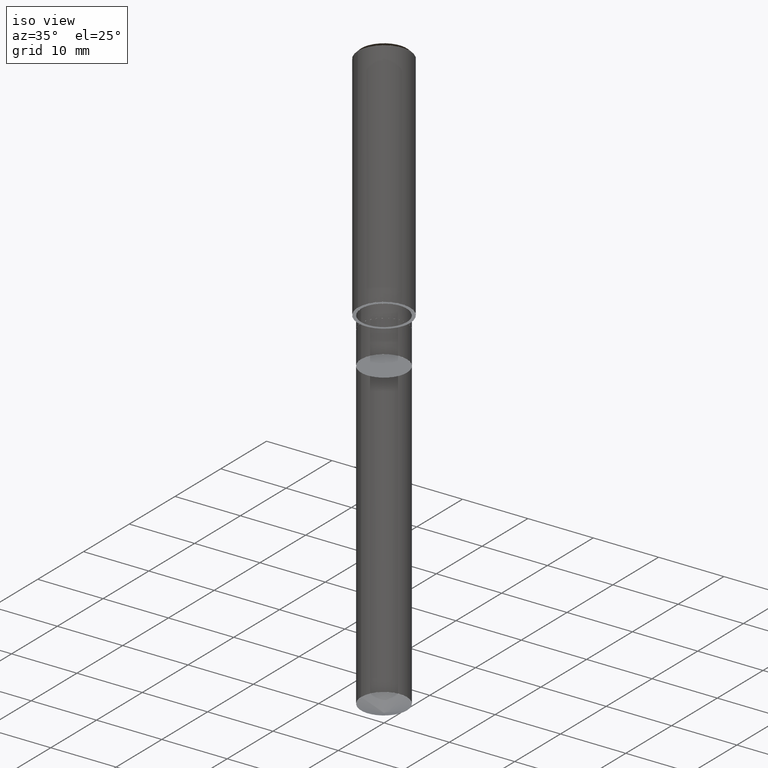
[diagram: clean part render]
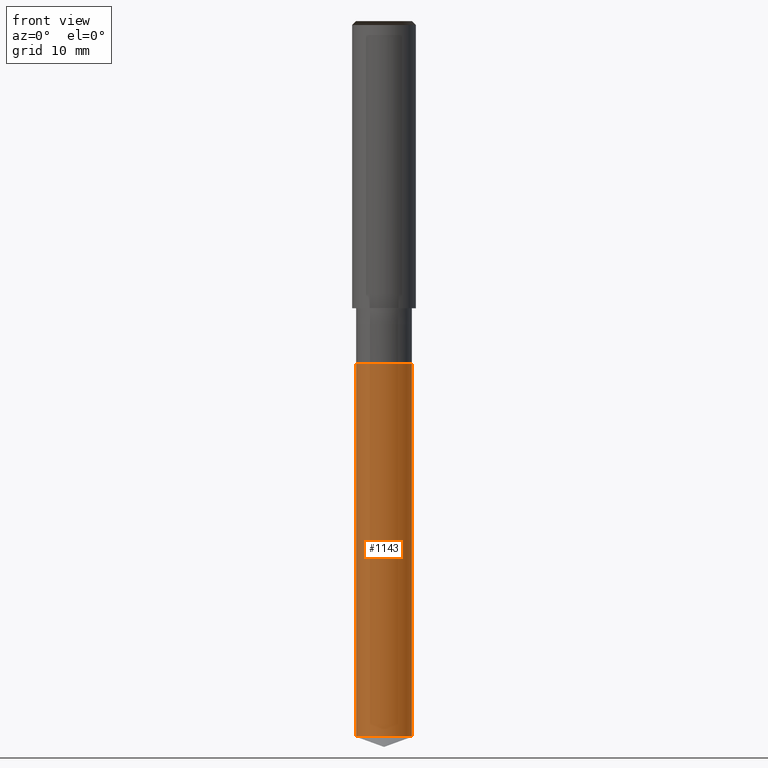
[diagram: tour spotlight — one face highlighted and labeled with its STEP entity id]
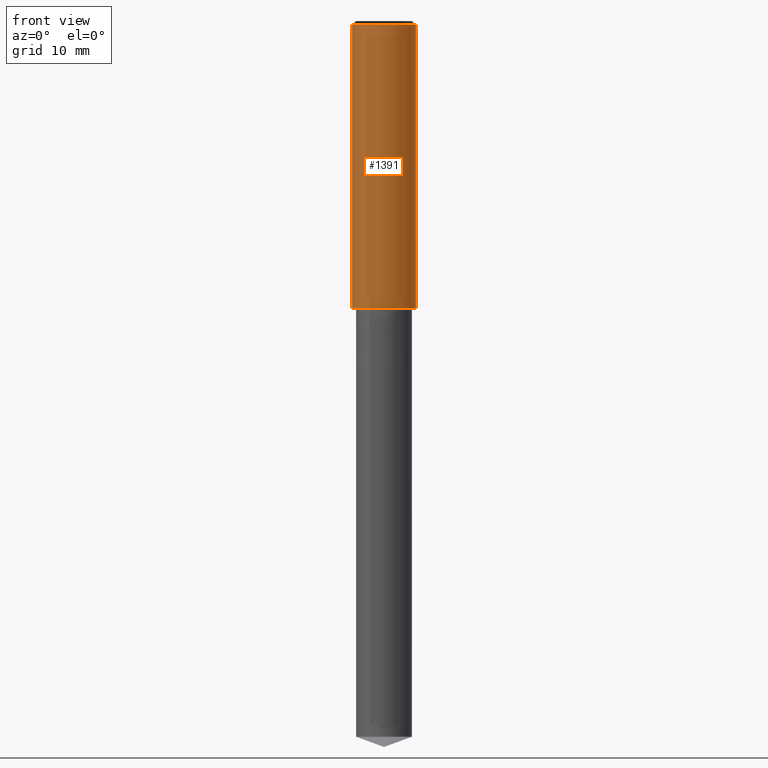
[diagram: tour spotlight — one face highlighted and labeled with its STEP entity id]
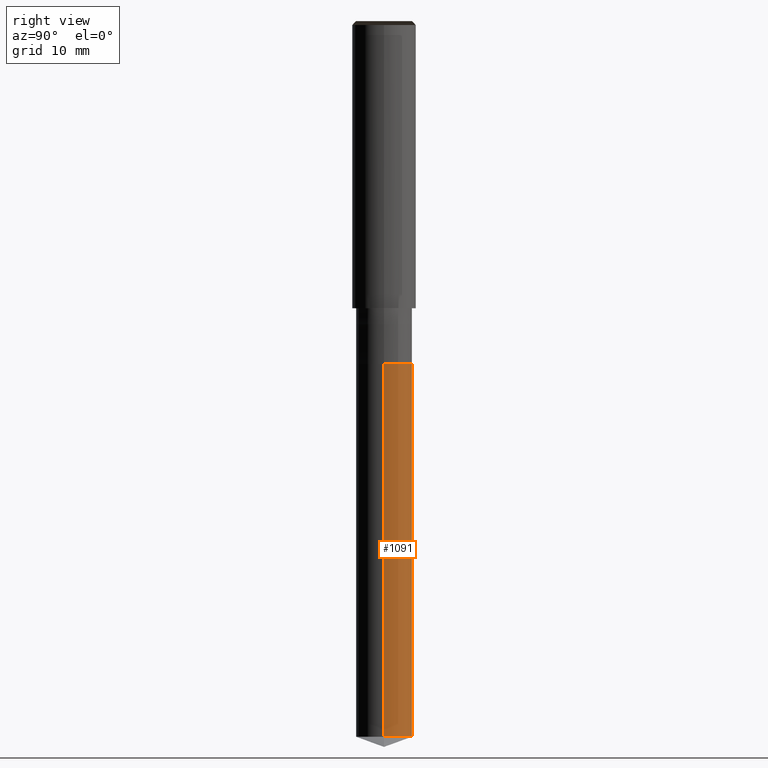
[diagram: tour spotlight — one face highlighted and labeled with its STEP entity id]
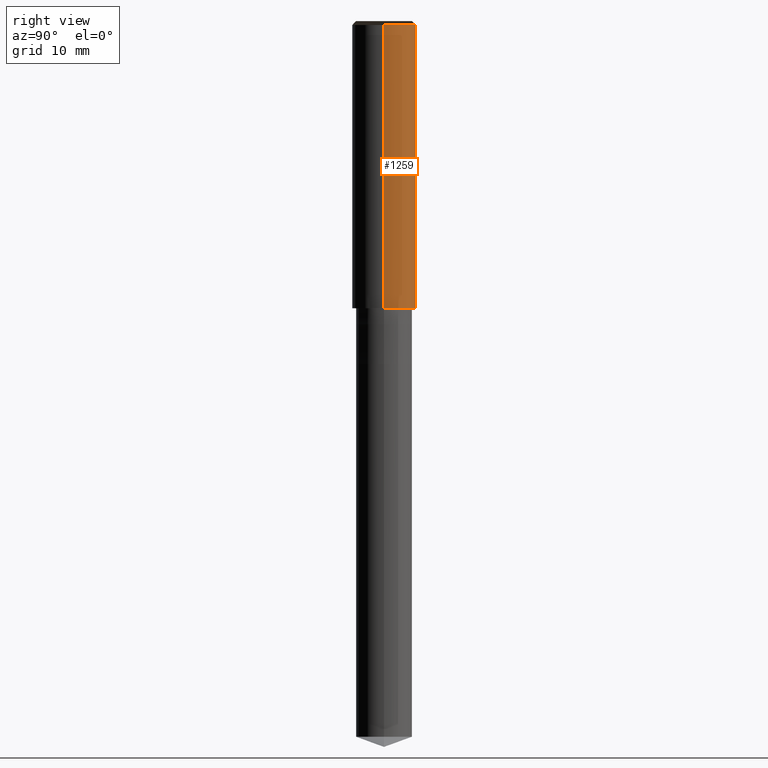
[diagram: tour spotlight — one face highlighted and labeled with its STEP entity id]
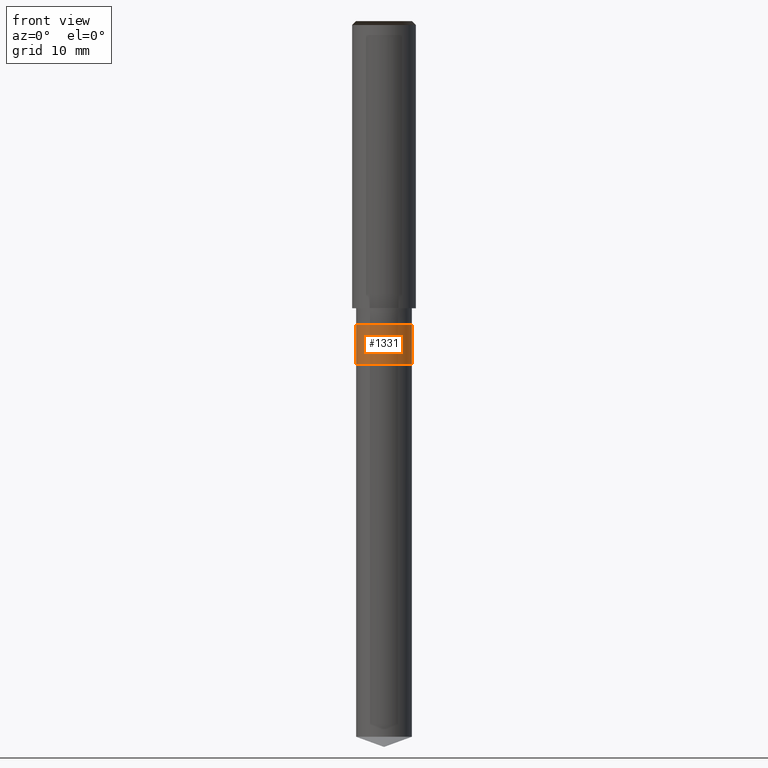
[diagram: tour spotlight — one face highlighted and labeled with its STEP entity id]
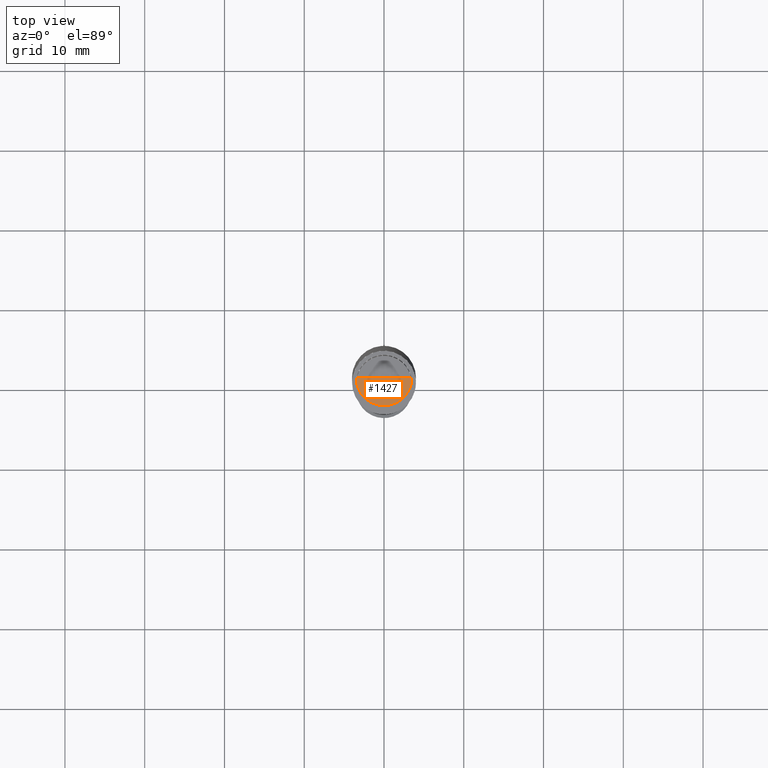
[diagram: tour spotlight — one face highlighted and labeled with its STEP entity id]
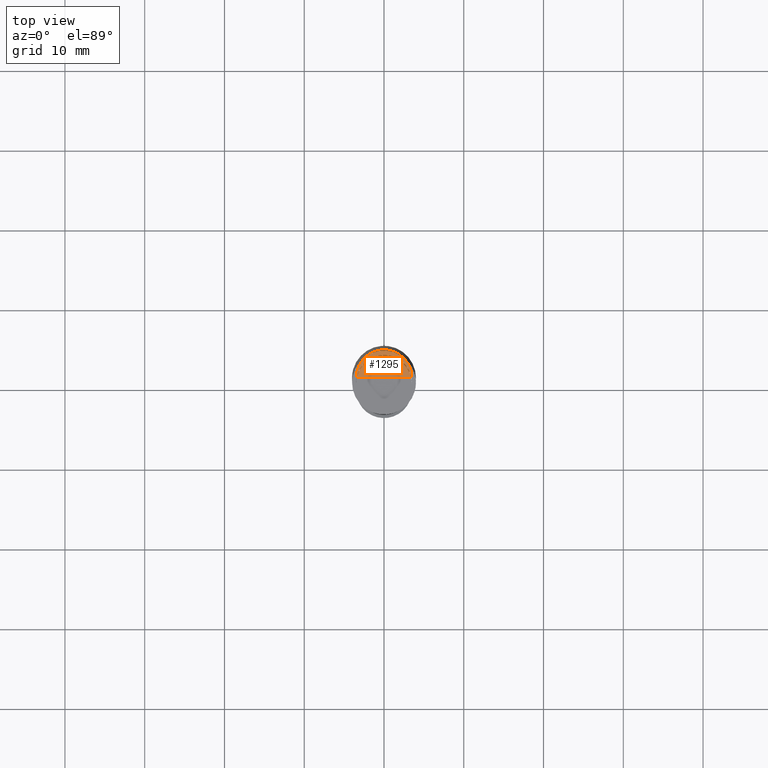
[diagram: tour spotlight — one face highlighted and labeled with its STEP entity id]
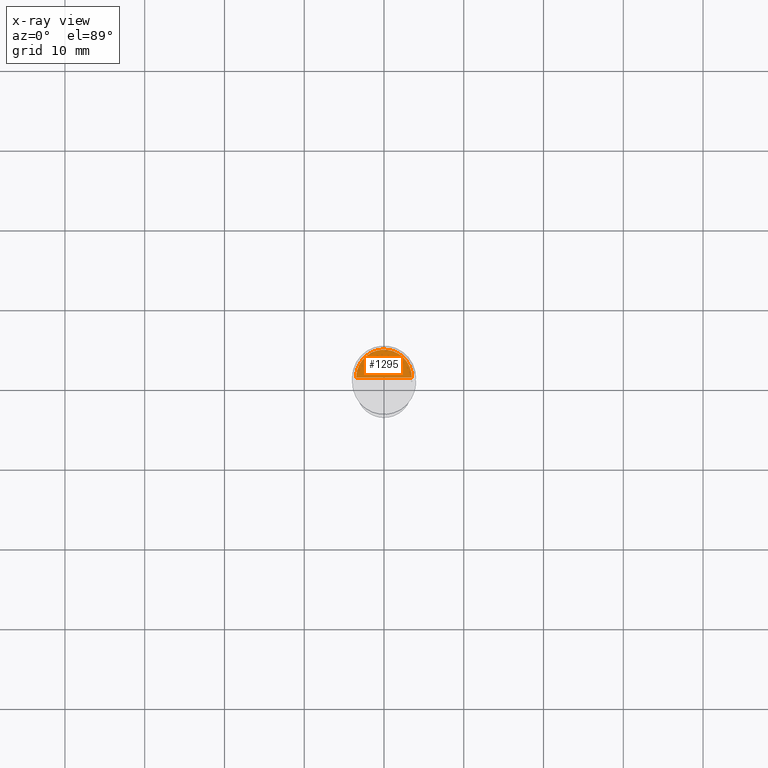
[diagram: x-ray of the same camera — body ghosted, this tour face saturated]
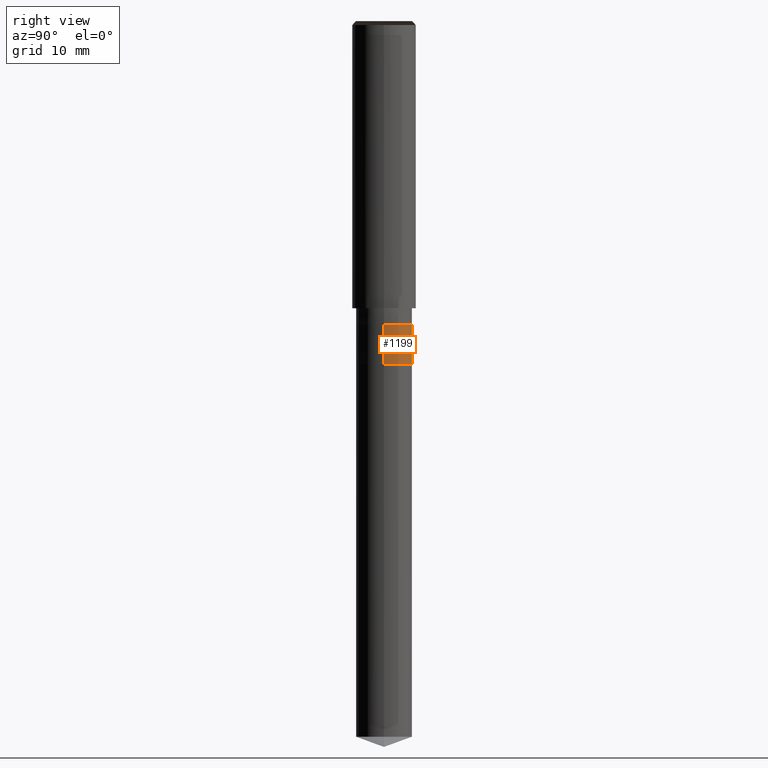
[diagram: tour spotlight — one face highlighted and labeled with its STEP entity id]
A machine part: a face-by-face anatomy tour. The part has 20 B-rep faces; the first image is the clean iso view, then the 8 largest visible faces are spotlighted one at a time (largest first), each with its STEP entity span.

Face 1 — front view, entity #1143. In plain terms, the highlighted face is a freeform B-spline surface patch.
Definition (entity closure, byte-faithful):
#993=CARTESIAN_POINT('',(3.5,0.0,-53.726104180068));
#997=CARTESIAN_POINT('',(-3.5,0.0,-53.726104180068));
#998=CARTESIAN_POINT('',(3.5,0.0,-7.0));
#1002=CARTESIAN_POINT('',(-3.5,0.0,-7.0));
#1004=CARTESIAN_POINT('',(-3.5,-3.5,-53.726104180068));
#1005=CARTESIAN_POINT('',(0.0,-3.5,-53.726104180068));
#1006=CARTESIAN_POINT('',(3.5,-3.5,-53.726104180068));
#1007=CARTESIAN_POINT('',(-3.5,-3.5,-7.0));
#1008=CARTESIAN_POINT('',(0.0,-3.5,-7.0));
#1009=CARTESIAN_POINT('',(3.5,-3.5,-7.0));
#1124=(
BOUNDED_SURFACE()
B_SPLINE_SURFACE(1,2,(
(#997,#1004,#1005,#1006,#993),
(#1002,#1007,#1008,#1009,#998)
), .UNSPECIFIED.,.F.,.F.,.F.)
B_SPLINE_SURFACE_WITH_KNOTS((2,2),(3,2,3),(
0.0,1.0),(
0.0,0.5,1.0), .UNSPECIFIED.)
GEOMETRIC_REPRESENTATION_ITEM()
RATIONAL_B_SPLINE_SURFACE(((1.0,0.707106781187,1.0,0.707106781187,1.0),
(1.0,0.707106781187,1.0,0.707106781187,1.0)
))
REPRESENTATION_ITEM('')
SURFACE()
);
#1125=(
BOUNDED_CURVE()
B_SPLINE_CURVE(2,(#993,#1006,#1005,#1004,#997),.UNSPECIFIED.,.F.,.F.)
B_SPLINE_CURVE_WITH_KNOTS((3,2,3),
(0.0,0.5,1.0),.UNSPECIFIED.)
CURVE()
GEOMETRIC_REPRESENTATION_ITEM()
RATIONAL_B_SPLINE_CURVE((1.0,0.707106781187,1.0,0.707106781187,1.0))
REPRESENTATION_ITEM('')
);
#1126=(
BOUNDED_CURVE()
B_SPLINE_CURVE(1,(#997,#1002),.UNSPECIFIED.,.F.,.F.)
B_SPLINE_CURVE_WITH_KNOTS((2,2),
(0.0,1.0),.UNSPECIFIED.)
CURVE()
GEOMETRIC_REPRESENTATION_ITEM()
RATIONAL_B_SPLINE_CURVE((1.0,1.0))
REPRESENTATION_ITEM('')
);
#1127=(
BOUNDED_CURVE()
B_SPLINE_CURVE(2,(#1002,#1007,#1008,#1009,#998),.UNSPECIFIED.,.F.,.F.)
B_SPLINE_CURVE_WITH_KNOTS((3,2,3),
(0.0,0.5,1.0),.UNSPECIFIED.)
CURVE()
GEOMETRIC_REPRESENTATION_ITEM()
RATIONAL_B_SPLINE_CURVE((1.0,0.707106781187,1.0,0.707106781187,1.0))
REPRESENTATION_ITEM('')
);
#1128=(
BOUNDED_CURVE()
B_SPLINE_CURVE(1,(#998,#993),.UNSPECIFIED.,.F.,.F.)
B_SPLINE_CURVE_WITH_KNOTS((2,2),
(0.0,1.0),.UNSPECIFIED.)
CURVE()
GEOMETRIC_REPRESENTATION_ITEM()
RATIONAL_B_SPLINE_CURVE((1.0,1.0))
REPRESENTATION_ITEM('')
);
#1129=VERTEX_POINT('',#993);
#1130=VERTEX_POINT('',#997);
#1131=VERTEX_POINT('',#998);
#1132=VERTEX_POINT('',#1002);
#1133=EDGE_CURVE('',#1129,#1130,#1125,.T.);
#1134=EDGE_CURVE('',#1130,#1132,#1126,.T.);
#1135=EDGE_CURVE('',#1132,#1131,#1127,.T.);
#1136=EDGE_CURVE('',#1131,#1129,#1128,.T.);
#1137=ORIENTED_EDGE('',*,*,#1133,.T.);
#1138=ORIENTED_EDGE('',*,*,#1134,.T.);
#1139=ORIENTED_EDGE('',*,*,#1135,.T.);
#1140=ORIENTED_EDGE('',*,*,#1136,.T.);
#1141=EDGE_LOOP('',(#1137,#1138,#1139,#1140));
#1142=FACE_OUTER_BOUND('',#1141,.T.);
#1143=ADVANCED_FACE('',(#1142),#1124,.T.);

Face 2 — front view, entity #1391. In plain terms, the highlighted face is a freeform B-spline surface patch.
Definition (entity closure, byte-faithful):
#1020=CARTESIAN_POINT('',(4.0,0.0,0.0));
#1024=CARTESIAN_POINT('',(-4.0,0.0,0.0));
#1025=CARTESIAN_POINT('',(4.0,0.0,35.5));
#1029=CARTESIAN_POINT('',(-4.0,0.0,35.5));
#1042=CARTESIAN_POINT('',(-4.0,-4.0,0.0));
#1043=CARTESIAN_POINT('',(0.0,-4.0,0.0));
#1044=CARTESIAN_POINT('',(4.0,-4.0,0.0));
#1045=CARTESIAN_POINT('',(-4.0,-4.0,35.5));
#1046=CARTESIAN_POINT('',(0.0,-4.0,35.5));
#1047=CARTESIAN_POINT('',(4.0,-4.0,35.5));
#1372=(
BOUNDED_SURFACE()
B_SPLINE_SURFACE(1,2,(
(#1024,#1042,#1043,#1044,#1020),
(#1029,#1045,#1046,#1047,#1025)
), .UNSPECIFIED.,.F.,.F.,.F.)
B_SPLINE_SURFACE_WITH_KNOTS((2,2),(3,2,3),(
0.0,1.0),(
0.0,0.5,1.0), .UNSPECIFIED.)
GEOMETRIC_REPRESENTATION_ITEM()
RATIONAL_B_SPLINE_SURFACE(((1.0,0.707106781187,1.0,0.707106781187,1.0),
(1.0,0.707106781187,1.0,0.707106781187,1.0)
))
REPRESENTATION_ITEM('')
SURFACE()
);
#1373=(
BOUNDED_CURVE()
B_SPLINE_CURVE(2,(#1020,#1044,#1043,#1042,#1024),.UNSPECIFIED.,.F.,.F.)
B_SPLINE_CURVE_WITH_KNOTS((3,2,3),
(0.0,0.5,1.0),.UNSPECIFIED.)
CURVE()
GEOMETRIC_REPRESENTATION_ITEM()
RATIONAL_B_SPLINE_CURVE((1.0,0.707106781187,1.0,0.707106781187,1.0))
REPRESENTATION_ITEM('')
);
#1374=(
BOUNDED_CURVE()
B_SPLINE_CURVE(1,(#1024,#1029),.UNSPECIFIED.,.F.,.F.)
B_SPLINE_CURVE_WITH_KNOTS((2,2),
(0.0,1.0),.UNSPECIFIED.)
CURVE()
GEOMETRIC_REPRESENTATION_ITEM()
RATIONAL_B_SPLINE_CURVE((1.0,1.0))
REPRESENTATION_ITEM('')
);
#1375=(
BOUNDED_CURVE()
B_SPLINE_CURVE(2,(#1029,#1045,#1046,#1047,#1025),.UNSPECIFIED.,.F.,.F.)
B_SPLINE_CURVE_WITH_KNOTS((3,2,3),
(0.0,0.5,1.0),.UNSPECIFIED.)
CURVE()
GEOMETRIC_REPRESENTATION_ITEM()
RATIONAL_B_SPLINE_CURVE((1.0,0.707106781187,1.0,0.707106781187,1.0))
REPRESENTATION_ITEM('')
);
#1376=(
BOUNDED_CURVE()
B_SPLINE_CURVE(1,(#1025,#1020),.UNSPECIFIED.,.F.,.F.)
B_SPLINE_CURVE_WITH_KNOTS((2,2),
(0.0,1.0),.UNSPECIFIED.)
CURVE()
GEOMETRIC_REPRESENTATION_ITEM()
RATIONAL_B_SPLINE_CURVE((1.0,1.0))
REPRESENTATION_ITEM('')
);
#1377=VERTEX_POINT('',#1020);
#1378=VERTEX_POINT('',#1024);
#1379=VERTEX_POINT('',#1025);
#1380=VERTEX_POINT('',#1029);
#1381=EDGE_CURVE('',#1377,#1378,#1373,.T.);
#1382=EDGE_CURVE('',#1378,#1380,#1374,.T.);
#1383=EDGE_CURVE('',#1380,#1379,#1375,.T.);
#1384=EDGE_CURVE('',#1379,#1377,#1376,.T.);
#1385=ORIENTED_EDGE('',*,*,#1381,.T.);
#1386=ORIENTED_EDGE('',*,*,#1382,.T.);
#1387=ORIENTED_EDGE('',*,*,#1383,.T.);
#1388=ORIENTED_EDGE('',*,*,#1384,.T.);
#1389=EDGE_LOOP('',(#1385,#1386,#1387,#1388));
#1390=FACE_OUTER_BOUND('',#1389,.T.);
#1391=ADVANCED_FACE('',(#1390),#1372,.T.);

Face 3 — right view, entity #1091. In plain terms, the highlighted face is a freeform B-spline surface patch.
Definition (entity closure, byte-faithful):
#993=CARTESIAN_POINT('',(3.5,0.0,-53.726104180068));
#994=CARTESIAN_POINT('',(3.5,3.5,-53.726104180068));
#995=CARTESIAN_POINT('',(0.0,3.5,-53.726104180068));
#996=CARTESIAN_POINT('',(-3.5,3.5,-53.726104180068));
#997=CARTESIAN_POINT('',(-3.5,0.0,-53.726104180068));
#998=CARTESIAN_POINT('',(3.5,0.0,-7.0));
#999=CARTESIAN_POINT('',(3.5,3.5,-7.0));
#1000=CARTESIAN_POINT('',(0.0,3.5,-7.0));
#1001=CARTESIAN_POINT('',(-3.5,3.5,-7.0));
#1002=CARTESIAN_POINT('',(-3.5,0.0,-7.0));
#1072=(
BOUNDED_SURFACE()
B_SPLINE_SURFACE(1,2,(
(#993,#994,#995,#996,#997),
(#998,#999,#1000,#1001,#1002)
), .UNSPECIFIED.,.F.,.F.,.F.)
B_SPLINE_SURFACE_WITH_KNOTS((2,2),(3,2,3),(
0.0,1.0),(
0.0,0.5,1.0), .UNSPECIFIED.)
GEOMETRIC_REPRESENTATION_ITEM()
RATIONAL_B_SPLINE_SURFACE(((1.0,0.707106781187,1.0,0.707106781187,1.0),
(1.0,0.707106781187,1.0,0.707106781187,1.0)
))
REPRESENTATION_ITEM('')
SURFACE()
);
#1073=(
BOUNDED_CURVE()
B_SPLINE_CURVE(2,(#997,#996,#995,#994,#993),.UNSPECIFIED.,.F.,.F.)
B_SPLINE_CURVE_WITH_KNOTS((3,2,3),
(0.0,0.5,1.0),.UNSPECIFIED.)
CURVE()
GEOMETRIC_REPRESENTATION_ITEM()
RATIONAL_B_SPLINE_CURVE((1.0,0.707106781187,1.0,0.707106781187,1.0))
REPRESENTATION_ITEM('')
);
#1074=(
BOUNDED_CURVE()
B_SPLINE_CURVE(1,(#993,#998),.UNSPECIFIED.,.F.,.F.)
B_SPLINE_CURVE_WITH_KNOTS((2,2),
(0.0,1.0),.UNSPECIFIED.)
CURVE()
GEOMETRIC_REPRESENTATION_ITEM()
RATIONAL_B_SPLINE_CURVE((1.0,1.0))
REPRESENTATION_ITEM('')
);
#1075=(
BOUNDED_CURVE()
B_SPLINE_CURVE(2,(#998,#999,#1000,#1001,#1002),.UNSPECIFIED.,.F.,.F.)
B_SPLINE_CURVE_WITH_KNOTS((3,2,3),
(0.0,0.5,1.0),.UNSPECIFIED.)
CURVE()
GEOMETRIC_REPRESENTATION_ITEM()
RATIONAL_B_SPLINE_CURVE((1.0,0.707106781187,1.0,0.707106781187,1.0))
REPRESENTATION_ITEM('')
);
#1076=(
BOUNDED_CURVE()
B_SPLINE_CURVE(1,(#1002,#997),.UNSPECIFIED.,.F.,.F.)
B_SPLINE_CURVE_WITH_KNOTS((2,2),
(0.0,1.0),.UNSPECIFIED.)
CURVE()
GEOMETRIC_REPRESENTATION_ITEM()
RATIONAL_B_SPLINE_CURVE((1.0,1.0))
REPRESENTATION_ITEM('')
);
#1077=VERTEX_POINT('',#993);
#1078=VERTEX_POINT('',#997);
#1079=VERTEX_POINT('',#998);
#1080=VERTEX_POINT('',#1002);
#1081=EDGE_CURVE('',#1078,#1077,#1073,.T.);
#1082=EDGE_CURVE('',#1077,#1079,#1074,.T.);
#1083=EDGE_CURVE('',#1079,#1080,#1075,.T.);
#1084=EDGE_CURVE('',#1080,#1078,#1076,.T.);
#1085=ORIENTED_EDGE('',*,*,#1081,.T.);
#1086=ORIENTED_EDGE('',*,*,#1082,.T.);
#1087=ORIENTED_EDGE('',*,*,#1083,.T.);
#1088=ORIENTED_EDGE('',*,*,#1084,.T.);
#1089=EDGE_LOOP('',(#1085,#1086,#1087,#1088));
#1090=FACE_OUTER_BOUND('',#1089,.T.);
#1091=ADVANCED_FACE('',(#1090),#1072,.T.);

Face 4 — right view, entity #1259. In plain terms, the highlighted face is a freeform B-spline surface patch.
Definition (entity closure, byte-faithful):
#1020=CARTESIAN_POINT('',(4.0,0.0,0.0));
#1021=CARTESIAN_POINT('',(4.0,4.0,0.0));
#1022=CARTESIAN_POINT('',(0.0,4.0,0.0));
#1023=CARTESIAN_POINT('',(-4.0,4.0,0.0));
#1024=CARTESIAN_POINT('',(-4.0,0.0,0.0));
#1025=CARTESIAN_POINT('',(4.0,0.0,35.5));
#1026=CARTESIAN_POINT('',(4.0,4.0,35.5));
#1027=CARTESIAN_POINT('',(0.0,4.0,35.5));
#1028=CARTESIAN_POINT('',(-4.0,4.0,35.5));
#1029=CARTESIAN_POINT('',(-4.0,0.0,35.5));
#1240=(
BOUNDED_SURFACE()
B_SPLINE_SURFACE(1,2,(
(#1020,#1021,#1022,#1023,#1024),
(#1025,#1026,#1027,#1028,#1029)
), .UNSPECIFIED.,.F.,.F.,.F.)
B_SPLINE_SURFACE_WITH_KNOTS((2,2),(3,2,3),(
0.0,1.0),(
0.0,0.5,1.0), .UNSPECIFIED.)
GEOMETRIC_REPRESENTATION_ITEM()
RATIONAL_B_SPLINE_SURFACE(((1.0,0.707106781187,1.0,0.707106781187,1.0),
(1.0,0.707106781187,1.0,0.707106781187,1.0)
))
REPRESENTATION_ITEM('')
SURFACE()
);
#1241=(
BOUNDED_CURVE()
B_SPLINE_CURVE(2,(#1024,#1023,#1022,#1021,#1020),.UNSPECIFIED.,.F.,.F.)
B_SPLINE_CURVE_WITH_KNOTS((3,2,3),
(0.0,0.5,1.0),.UNSPECIFIED.)
CURVE()
GEOMETRIC_REPRESENTATION_ITEM()
RATIONAL_B_SPLINE_CURVE((1.0,0.707106781187,1.0,0.707106781187,1.0))
REPRESENTATION_ITEM('')
);
#1242=(
BOUNDED_CURVE()
B_SPLINE_CURVE(1,(#1020,#1025),.UNSPECIFIED.,.F.,.F.)
B_SPLINE_CURVE_WITH_KNOTS((2,2),
(0.0,1.0),.UNSPECIFIED.)
CURVE()
GEOMETRIC_REPRESENTATION_ITEM()
RATIONAL_B_SPLINE_CURVE((1.0,1.0))
REPRESENTATION_ITEM('')
);
#1243=(
BOUNDED_CURVE()
B_SPLINE_CURVE(2,(#1025,#1026,#1027,#1028,#1029),.UNSPECIFIED.,.F.,.F.)
B_SPLINE_CURVE_WITH_KNOTS((3,2,3),
(0.0,0.5,1.0),.UNSPECIFIED.)
CURVE()
GEOMETRIC_REPRESENTATION_ITEM()
RATIONAL_B_SPLINE_CURVE((1.0,0.707106781187,1.0,0.707106781187,1.0))
REPRESENTATION_ITEM('')
);
#1244=(
BOUNDED_CURVE()
B_SPLINE_CURVE(1,(#1029,#1024),.UNSPECIFIED.,.F.,.F.)
B_SPLINE_CURVE_WITH_KNOTS((2,2),
(0.0,1.0),.UNSPECIFIED.)
CURVE()
GEOMETRIC_REPRESENTATION_ITEM()
RATIONAL_B_SPLINE_CURVE((1.0,1.0))
REPRESENTATION_ITEM('')
);
#1245=VERTEX_POINT('',#1020);
#1246=VERTEX_POINT('',#1024);
#1247=VERTEX_POINT('',#1025);
#1248=VERTEX_POINT('',#1029);
#1249=EDGE_CURVE('',#1246,#1245,#1241,.T.);
#1250=EDGE_CURVE('',#1245,#1247,#1242,.T.);
#1251=EDGE_CURVE('',#1247,#1248,#1243,.T.);
#1252=EDGE_CURVE('',#1248,#1246,#1244,.T.);
#1253=ORIENTED_EDGE('',*,*,#1249,.T.);
#1254=ORIENTED_EDGE('',*,*,#1250,.T.);
#1255=ORIENTED_EDGE('',*,*,#1251,.T.);
#1256=ORIENTED_EDGE('',*,*,#1252,.T.);
#1257=EDGE_LOOP('',(#1253,#1254,#1255,#1256));
#1258=FACE_OUTER_BOUND('',#1257,.T.);
#1259=ADVANCED_FACE('',(#1258),#1240,.T.);

Face 5 — front view, entity #1331. In plain terms, the highlighted face is a freeform B-spline surface patch.
Definition (entity closure, byte-faithful):
#998=CARTESIAN_POINT('',(3.5,0.0,-7.0));
#1002=CARTESIAN_POINT('',(-3.5,0.0,-7.0));
#1007=CARTESIAN_POINT('',(-3.5,-3.5,-7.0));
#1008=CARTESIAN_POINT('',(0.0,-3.5,-7.0));
#1009=CARTESIAN_POINT('',(3.5,-3.5,-7.0));
#1010=CARTESIAN_POINT('',(3.5,0.0,-2.0));
#1014=CARTESIAN_POINT('',(-3.5,0.0,-2.0));
#1036=CARTESIAN_POINT('',(-3.5,-3.5,-2.0));
#1037=CARTESIAN_POINT('',(0.0,-3.5,-2.0));
#1038=CARTESIAN_POINT('',(3.5,-3.5,-2.0));
#1312=(
BOUNDED_SURFACE()
B_SPLINE_SURFACE(1,2,(
(#1002,#1007,#1008,#1009,#998),
(#1014,#1036,#1037,#1038,#1010)
), .UNSPECIFIED.,.F.,.F.,.F.)
B_SPLINE_SURFACE_WITH_KNOTS((2,2),(3,2,3),(
0.0,1.0),(
0.0,0.5,1.0), .UNSPECIFIED.)
GEOMETRIC_REPRESENTATION_ITEM()
RATIONAL_B_SPLINE_SURFACE(((1.0,0.707106781187,1.0,0.707106781187,1.0),
(1.0,0.707106781187,1.0,0.707106781187,1.0)
))
REPRESENTATION_ITEM('')
SURFACE()
);
#1313=(
BOUNDED_CURVE()
B_SPLINE_CURVE(2,(#998,#1009,#1008,#1007,#1002),.UNSPECIFIED.,.F.,.F.)
B_SPLINE_CURVE_WITH_KNOTS((3,2,3),
(0.0,0.5,1.0),.UNSPECIFIED.)
CURVE()
GEOMETRIC_REPRESENTATION_ITEM()
RATIONAL_B_SPLINE_CURVE((1.0,0.707106781187,1.0,0.707106781187,1.0))
REPRESENTATION_ITEM('')
);
#1314=(
BOUNDED_CURVE()
B_SPLINE_CURVE(1,(#1002,#1014),.UNSPECIFIED.,.F.,.F.)
B_SPLINE_CURVE_WITH_KNOTS((2,2),
(0.0,1.0),.UNSPECIFIED.)
CURVE()
GEOMETRIC_REPRESENTATION_ITEM()
RATIONAL_B_SPLINE_CURVE((1.0,1.0))
REPRESENTATION_ITEM('')
);
#1315=(
BOUNDED_CURVE()
B_SPLINE_CURVE(2,(#1014,#1036,#1037,#1038,#1010),.UNSPECIFIED.,.F.,.F.)
B_SPLINE_CURVE_WITH_KNOTS((3,2,3),
(0.0,0.5,1.0),.UNSPECIFIED.)
CURVE()
GEOMETRIC_REPRESENTATION_ITEM()
RATIONAL_B_SPLINE_CURVE((1.0,0.707106781187,1.0,0.707106781187,1.0))
REPRESENTATION_ITEM('')
);
#1316=(
BOUNDED_CURVE()
B_SPLINE_CURVE(1,(#1010,#998),.UNSPECIFIED.,.F.,.F.)
B_SPLINE_CURVE_WITH_KNOTS((2,2),
(0.0,1.0),.UNSPECIFIED.)
CURVE()
GEOMETRIC_REPRESENTATION_ITEM()
RATIONAL_B_SPLINE_CURVE((1.0,1.0))
REPRESENTATION_ITEM('')
);
#1317=VERTEX_POINT('',#998);
#1318=VERTEX_POINT('',#1002);
#1319=VERTEX_POINT('',#1010);
#1320=VERTEX_POINT('',#1014);
#1321=EDGE_CURVE('',#1317,#1318,#1313,.T.);
#1322=EDGE_CURVE('',#1318,#1320,#1314,.T.);
#1323=EDGE_CURVE('',#1320,#1319,#1315,.T.);
#1324=EDGE_CURVE('',#1319,#1317,#1316,.T.);
#1325=ORIENTED_EDGE('',*,*,#1321,.T.);
#1326=ORIENTED_EDGE('',*,*,#1322,.T.);
#1327=ORIENTED_EDGE('',*,*,#1323,.T.);
#1328=ORIENTED_EDGE('',*,*,#1324,.T.);
#1329=EDGE_LOOP('',(#1325,#1326,#1327,#1328));
#1330=FACE_OUTER_BOUND('',#1329,.T.);
#1331=ADVANCED_FACE('',(#1330),#1312,.T.);

Face 6 — top view, entity #1427. In plain terms, the highlighted face is a freeform B-spline surface patch.
Definition (entity closure, byte-faithful):
#1030=CARTESIAN_POINT('',(3.5,0.0,36.0));
#1034=CARTESIAN_POINT('',(-3.5,0.0,36.0));
#1035=CARTESIAN_POINT('',(0.0,0.0,36.0));
#1048=CARTESIAN_POINT('',(-3.5,-3.5,36.0));
#1049=CARTESIAN_POINT('',(0.0,-3.5,36.0));
#1050=CARTESIAN_POINT('',(3.5,-3.5,36.0));
#1412=(
BOUNDED_SURFACE()
B_SPLINE_SURFACE(1,2,(
(#1034,#1048,#1049,#1050,#1030),
(#1035,#1035,#1035,#1035,#1035)
), .UNSPECIFIED.,.F.,.F.,.F.)
B_SPLINE_SURFACE_WITH_KNOTS((2,2),(3,2,3),(
0.0,1.0),(
0.0,0.5,1.0), .UNSPECIFIED.)
GEOMETRIC_REPRESENTATION_ITEM()
RATIONAL_B_SPLINE_SURFACE(((1.0,0.707106781187,1.0,0.707106781187,1.0),
(1.0,0.707106781187,1.0,0.707106781187,1.0)
))
REPRESENTATION_ITEM('')
SURFACE()
);
#1413=(
BOUNDED_CURVE()
B_SPLINE_CURVE(2,(#1030,#1050,#1049,#1048,#1034),.UNSPECIFIED.,.F.,.F.)
B_SPLINE_CURVE_WITH_KNOTS((3,2,3),
(0.0,0.5,1.0),.UNSPECIFIED.)
CURVE()
GEOMETRIC_REPRESENTATION_ITEM()
RATIONAL_B_SPLINE_CURVE((1.0,0.707106781187,1.0,0.707106781187,1.0))
REPRESENTATION_ITEM('')
);
#1414=(
BOUNDED_CURVE()
B_SPLINE_CURVE(1,(#1034,#1035),.UNSPECIFIED.,.F.,.F.)
B_SPLINE_CURVE_WITH_KNOTS((2,2),
(0.0,1.0),.UNSPECIFIED.)
CURVE()
GEOMETRIC_REPRESENTATION_ITEM()
RATIONAL_B_SPLINE_CURVE((1.0,1.0))
REPRESENTATION_ITEM('')
);
#1415=(
BOUNDED_CURVE()
B_SPLINE_CURVE(1,(#1035,#1030),.UNSPECIFIED.,.F.,.F.)
B_SPLINE_CURVE_WITH_KNOTS((2,2),
(0.0,1.0),.UNSPECIFIED.)
CURVE()
GEOMETRIC_REPRESENTATION_ITEM()
RATIONAL_B_SPLINE_CURVE((1.0,1.0))
REPRESENTATION_ITEM('')
);
#1416=VERTEX_POINT('',#1030);
#1417=VERTEX_POINT('',#1034);
#1418=VERTEX_POINT('',#1035);
#1419=EDGE_CURVE('',#1416,#1417,#1413,.T.);
#1420=EDGE_CURVE('',#1417,#1418,#1414,.T.);
#1421=EDGE_CURVE('',#1418,#1416,#1415,.T.);
#1422=ORIENTED_EDGE('',*,*,#1419,.T.);
#1423=ORIENTED_EDGE('',*,*,#1420,.T.);
#1424=ORIENTED_EDGE('',*,*,#1421,.T.);
#1425=EDGE_LOOP('',(#1422,#1423,#1424));
#1426=FACE_OUTER_BOUND('',#1425,.T.);
#1427=ADVANCED_FACE('',(#1426),#1412,.T.);

Face 7 — top view, entity #1295. An x-ray twin of the same camera follows (body ghosted, this face saturated) — the face is partly hidden behind the body. In plain terms, the highlighted face is a freeform B-spline surface patch.
Definition (entity closure, byte-faithful):
#1030=CARTESIAN_POINT('',(3.5,0.0,36.0));
#1031=CARTESIAN_POINT('',(3.5,3.5,36.0));
#1032=CARTESIAN_POINT('',(0.0,3.5,36.0));
#1033=CARTESIAN_POINT('',(-3.5,3.5,36.0));
#1034=CARTESIAN_POINT('',(-3.5,0.0,36.0));
#1035=CARTESIAN_POINT('',(0.0,0.0,36.0));
#1280=(
BOUNDED_SURFACE()
B_SPLINE_SURFACE(1,2,(
(#1030,#1031,#1032,#1033,#1034),
(#1035,#1035,#1035,#1035,#1035)
), .UNSPECIFIED.,.F.,.F.,.F.)
B_SPLINE_SURFACE_WITH_KNOTS((2,2),(3,2,3),(
0.0,1.0),(
0.0,0.5,1.0), .UNSPECIFIED.)
GEOMETRIC_REPRESENTATION_ITEM()
RATIONAL_B_SPLINE_SURFACE(((1.0,0.707106781187,1.0,0.707106781187,1.0),
(1.0,0.707106781187,1.0,0.707106781187,1.0)
))
REPRESENTATION_ITEM('')
SURFACE()
);
#1281=(
BOUNDED_CURVE()
B_SPLINE_CURVE(2,(#1034,#1033,#1032,#1031,#1030),.UNSPECIFIED.,.F.,.F.)
B_SPLINE_CURVE_WITH_KNOTS((3,2,3),
(0.0,0.5,1.0),.UNSPECIFIED.)
CURVE()
GEOMETRIC_REPRESENTATION_ITEM()
RATIONAL_B_SPLINE_CURVE((1.0,0.707106781187,1.0,0.707106781187,1.0))
REPRESENTATION_ITEM('')
);
#1282=(
BOUNDED_CURVE()
B_SPLINE_CURVE(1,(#1030,#1035),.UNSPECIFIED.,.F.,.F.)
B_SPLINE_CURVE_WITH_KNOTS((2,2),
(0.0,1.0),.UNSPECIFIED.)
CURVE()
GEOMETRIC_REPRESENTATION_ITEM()
RATIONAL_B_SPLINE_CURVE((1.0,1.0))
REPRESENTATION_ITEM('')
);
#1283=(
BOUNDED_CURVE()
B_SPLINE_CURVE(1,(#1035,#1034),.UNSPECIFIED.,.F.,.F.)
B_SPLINE_CURVE_WITH_KNOTS((2,2),
(0.0,1.0),.UNSPECIFIED.)
CURVE()
GEOMETRIC_REPRESENTATION_ITEM()
RATIONAL_B_SPLINE_CURVE((1.0,1.0))
REPRESENTATION_ITEM('')
);
#1284=VERTEX_POINT('',#1030);
#1285=VERTEX_POINT('',#1034);
#1286=VERTEX_POINT('',#1035);
#1287=EDGE_CURVE('',#1285,#1284,#1281,.T.);
#1288=EDGE_CURVE('',#1284,#1286,#1282,.T.);
#1289=EDGE_CURVE('',#1286,#1285,#1283,.T.);
#1290=ORIENTED_EDGE('',*,*,#1287,.T.);
#1291=ORIENTED_EDGE('',*,*,#1288,.T.);
#1292=ORIENTED_EDGE('',*,*,#1289,.T.);
#1293=EDGE_LOOP('',(#1290,#1291,#1292));
#1294=FACE_OUTER_BOUND('',#1293,.T.);
#1295=ADVANCED_FACE('',(#1294),#1280,.T.);

Face 8 — right view, entity #1199. In plain terms, the highlighted face is a freeform B-spline surface patch.
Definition (entity closure, byte-faithful):
#998=CARTESIAN_POINT('',(3.5,0.0,-7.0));
#999=CARTESIAN_POINT('',(3.5,3.5,-7.0));
#1000=CARTESIAN_POINT('',(0.0,3.5,-7.0));
#1001=CARTESIAN_POINT('',(-3.5,3.5,-7.0));
#1002=CARTESIAN_POINT('',(-3.5,0.0,-7.0));
#1010=CARTESIAN_POINT('',(3.5,0.0,-2.0));
#1011=CARTESIAN_POINT('',(3.5,3.5,-2.0));
#1012=CARTESIAN_POINT('',(0.0,3.5,-2.0));
#1013=CARTESIAN_POINT('',(-3.5,3.5,-2.0));
#1014=CARTESIAN_POINT('',(-3.5,0.0,-2.0));
#1180=(
BOUNDED_SURFACE()
B_SPLINE_SURFACE(1,2,(
(#998,#999,#1000,#1001,#1002),
(#1010,#1011,#1012,#1013,#1014)
), .UNSPECIFIED.,.F.,.F.,.F.)
B_SPLINE_SURFACE_WITH_KNOTS((2,2),(3,2,3),(
0.0,1.0),(
0.0,0.5,1.0), .UNSPECIFIED.)
GEOMETRIC_REPRESENTATION_ITEM()
RATIONAL_B_SPLINE_SURFACE(((1.0,0.707106781187,1.0,0.707106781187,1.0),
(1.0,0.707106781187,1.0,0.707106781187,1.0)
))
REPRESENTATION_ITEM('')
SURFACE()
);
#1181=(
BOUNDED_CURVE()
B_SPLINE_CURVE(2,(#1002,#1001,#1000,#999,#998),.UNSPECIFIED.,.F.,.F.)
B_SPLINE_CURVE_WITH_KNOTS((3,2,3),
(0.0,0.5,1.0),.UNSPECIFIED.)
CURVE()
GEOMETRIC_REPRESENTATION_ITEM()
RATIONAL_B_SPLINE_CURVE((1.0,0.707106781187,1.0,0.707106781187,1.0))
REPRESENTATION_ITEM('')
);
#1182=(
BOUNDED_CURVE()
B_SPLINE_CURVE(1,(#998,#1010),.UNSPECIFIED.,.F.,.F.)
B_SPLINE_CURVE_WITH_KNOTS((2,2),
(0.0,1.0),.UNSPECIFIED.)
CURVE()
GEOMETRIC_REPRESENTATION_ITEM()
RATIONAL_B_SPLINE_CURVE((1.0,1.0))
REPRESENTATION_ITEM('')
);
#1183=(
BOUNDED_CURVE()
B_SPLINE_CURVE(2,(#1010,#1011,#1012,#1013,#1014),.UNSPECIFIED.,.F.,.F.)
B_SPLINE_CURVE_WITH_KNOTS((3,2,3),
(0.0,0.5,1.0),.UNSPECIFIED.)
CURVE()
GEOMETRIC_REPRESENTATION_ITEM()
RATIONAL_B_SPLINE_CURVE((1.0,0.707106781187,1.0,0.707106781187,1.0))
REPRESENTATION_ITEM('')
);
#1184=(
BOUNDED_CURVE()
B_SPLINE_CURVE(1,(#1014,#1002),.UNSPECIFIED.,.F.,.F.)
B_SPLINE_CURVE_WITH_KNOTS((2,2),
(0.0,1.0),.UNSPECIFIED.)
CURVE()
GEOMETRIC_REPRESENTATION_ITEM()
RATIONAL_B_SPLINE_CURVE((1.0,1.0))
REPRESENTATION_ITEM('')
);
#1185=VERTEX_POINT('',#998);
#1186=VERTEX_POINT('',#1002);
#1187=VERTEX_POINT('',#1010);
#1188=VERTEX_POINT('',#1014);
#1189=EDGE_CURVE('',#1186,#1185,#1181,.T.);
#1190=EDGE_CURVE('',#1185,#1187,#1182,.T.);
#1191=EDGE_CURVE('',#1187,#1188,#1183,.T.);
#1192=EDGE_CURVE('',#1188,#1186,#1184,.T.);
#1193=ORIENTED_EDGE('',*,*,#1189,.T.);
#1194=ORIENTED_EDGE('',*,*,#1190,.T.);
#1195=ORIENTED_EDGE('',*,*,#1191,.T.);
#1196=ORIENTED_EDGE('',*,*,#1192,.T.);
#1197=EDGE_LOOP('',(#1193,#1194,#1195,#1196));
#1198=FACE_OUTER_BOUND('',#1197,.T.);
#1199=ADVANCED_FACE('',(#1198),#1180,.T.);